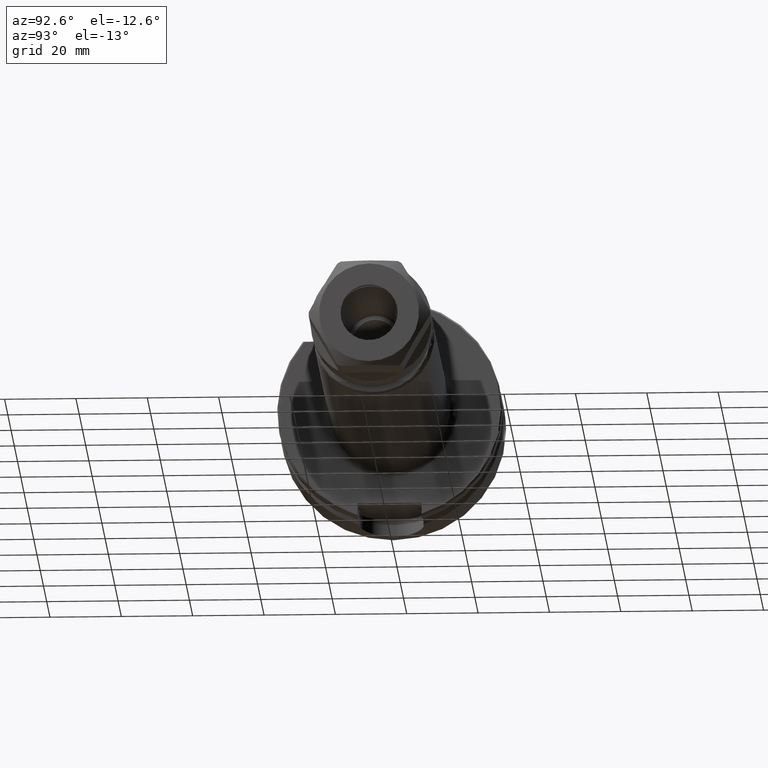
[diagram: clean part render]
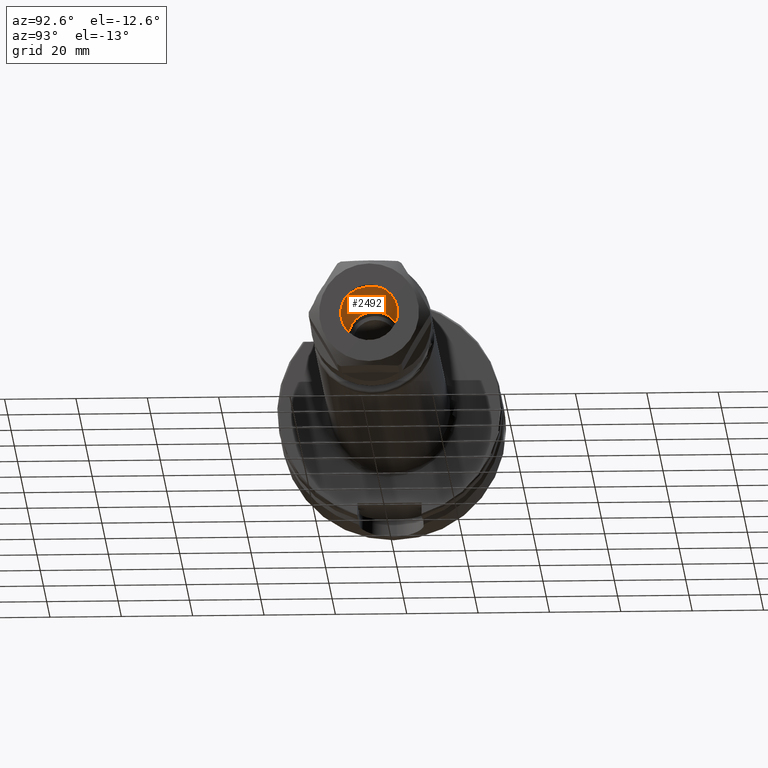
[diagram: same view with one face highlighted and labeled with its STEP entity id]
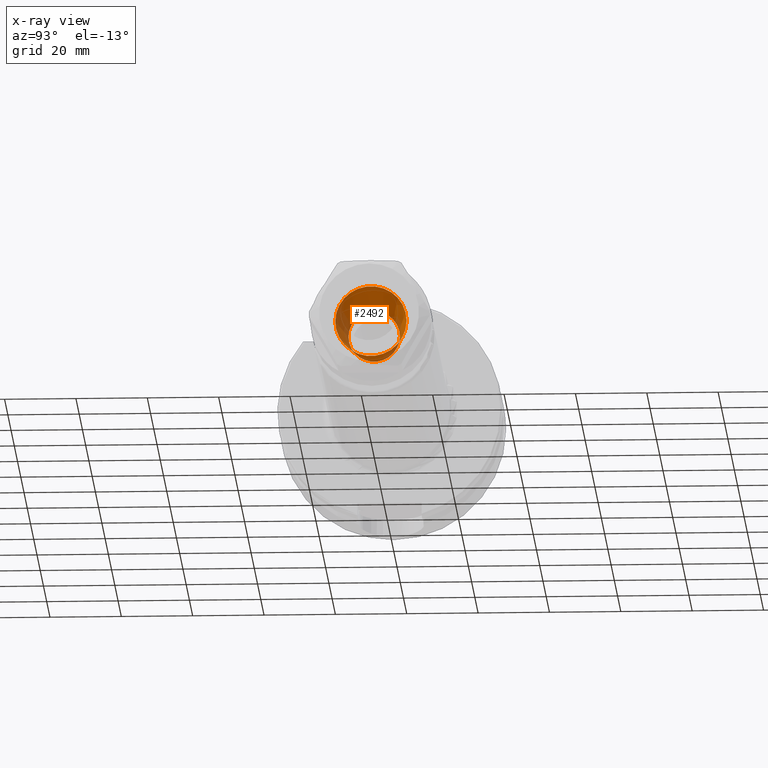
[diagram: x-ray of the same camera — body ghosted, the highlighted face saturated]
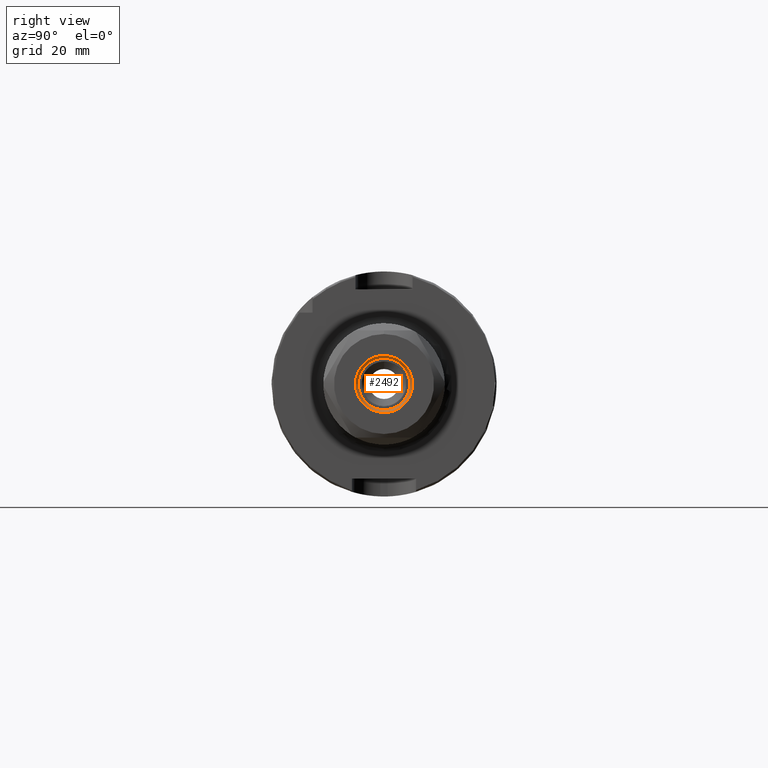
[diagram: same view with one face highlighted and labeled with its STEP entity id]
A machine part, auxiliary view. The second image highlights one B-rep face of the part: STEP entity #2492.
The next image is the same camera in x-ray: the body ghosted, the highlighted face saturated — about 9% of this face is hidden behind the body in this view.
A second angle (right view) of the same face is appended — the face is thin or edge-on in the first view.
In plain terms, the highlighted conical surface has half-angle 8 deg.
Its self-contained STEP definition (entity closure, byte-faithful):
#263=CONICAL_SURFACE('',#2742,8.6,0.139626340159547);
#295=FACE_OUTER_BOUND('',#448,.T.);
#448=EDGE_LOOP('',(#1733,#1734,#1735,#1736));
#612=LINE('',#3898,#748);
#748=VECTOR('',#3125,8.6);
#879=CIRCLE('',#2718,10.);
#895=CIRCLE('',#2743,7.2);
#1036=VERTEX_POINT('',#3841);
#1057=VERTEX_POINT('',#3897);
#1293=EDGE_CURVE('',#1036,#1036,#879,.T.);
#1319=EDGE_CURVE('',#1036,#1057,#612,.T.);
#1320=EDGE_CURVE('',#1057,#1057,#895,.T.);
#1733=ORIENTED_EDGE('',*,*,#1293,.T.);
#1734=ORIENTED_EDGE('',*,*,#1319,.T.);
#1735=ORIENTED_EDGE('',*,*,#1320,.F.);
#1736=ORIENTED_EDGE('',*,*,#1319,.F.);
#2492=ADVANCED_FACE('',(#295),#263,.F.);
#2718=AXIS2_PLACEMENT_3D('',#3842,#3065,#3066);
#2742=AXIS2_PLACEMENT_3D('',#3896,#3123,#3124);
#2743=AXIS2_PLACEMENT_3D('',#3899,#3126,#3127);
#3065=DIRECTION('center_axis',(1.,0.,0.));
#3066=DIRECTION('ref_axis',(0.,0.,-1.));
#3123=DIRECTION('center_axis',(1.,0.,0.));
#3124=DIRECTION('ref_axis',(0.,1.,0.));
#3125=DIRECTION('',(-0.99026806874157,0.139173100960066,1.70437892618156E-17));
#3126=DIRECTION('center_axis',(1.,0.,0.));
#3127=DIRECTION('ref_axis',(0.,0.,-1.));
#3841=CARTESIAN_POINT('',(140.9,-10.,-1.22464679914735E-15));
#3842=CARTESIAN_POINT('Origin',(140.9,0.,0.));
#3896=CARTESIAN_POINT('Origin',(130.938482388662,0.,0.));
#3897=CARTESIAN_POINT('',(120.976964777324,-7.2,-8.81745695386094E-16));
#3898=CARTESIAN_POINT('',(130.938482388662,-8.6,-1.05319624726672E-15));
#3899=CARTESIAN_POINT('Origin',(120.976964777324,0.,0.));